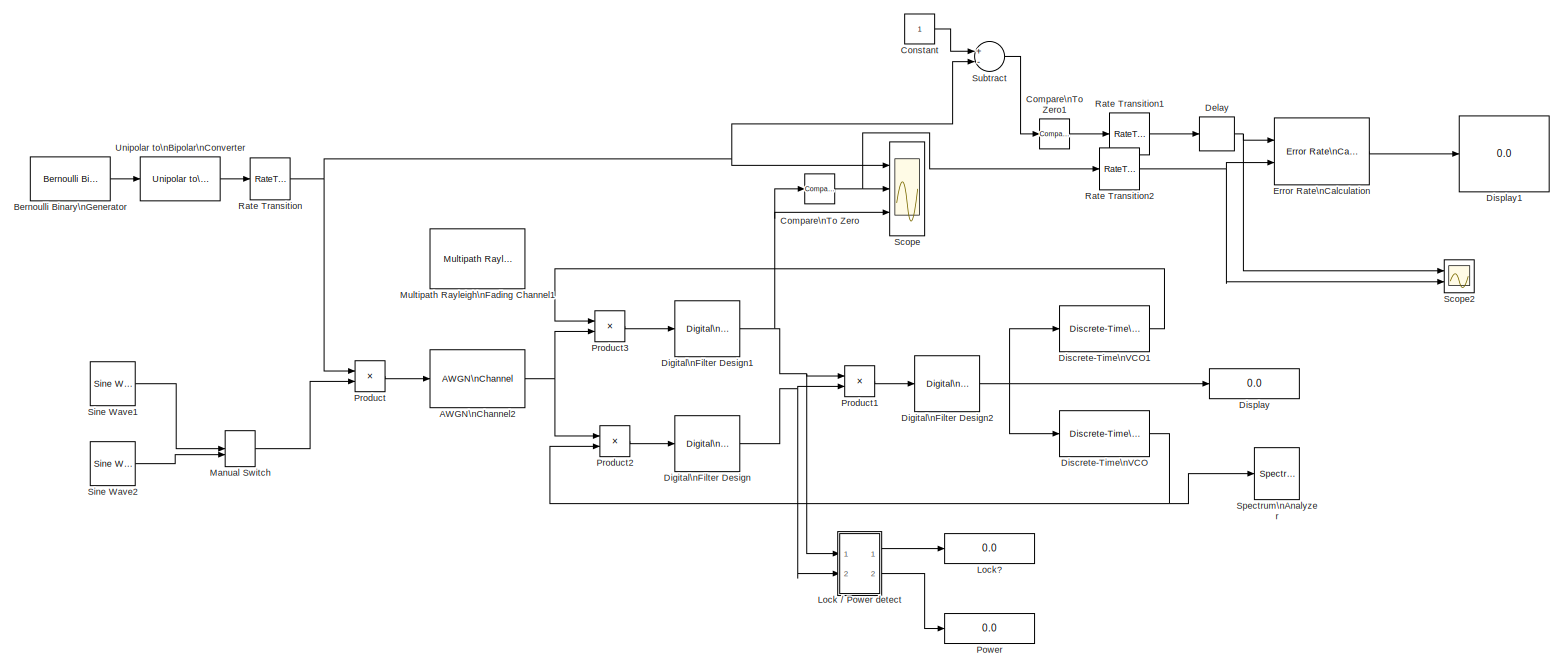
[diagram: root canvas - part 1/1, most of the canvas]
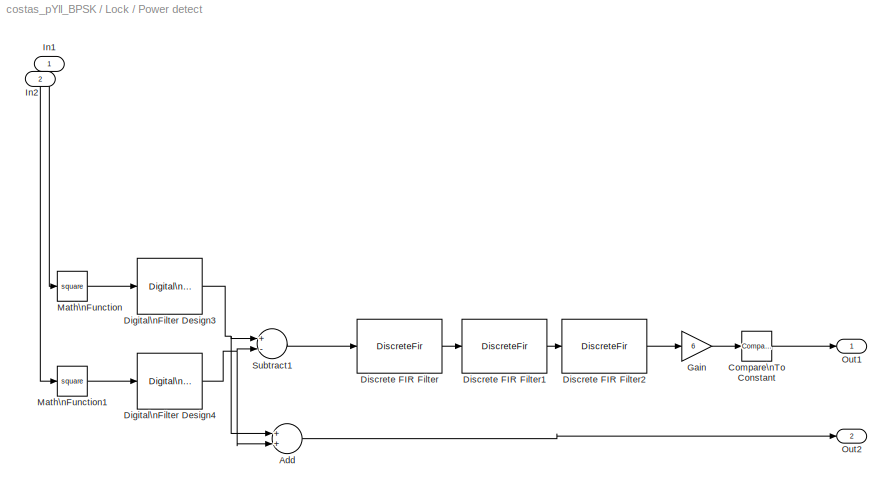
MODEL costas_pYll_BPSK
KIND model
BLOCK [Reference] AWGN\nChannel2  REF=commchan3/AWGN\nChannel
  EbNodB = 10
  EsNodB = 10
  InputProcessing = Inherited (this choice will be removed - see release notes)
  Ports = [1, 1]
  Ps = 1
  SID = 30
  SNRdB = 10
  SourceBlock = commchan3/AWGN\nChannel
  SourceType = AWGN Channel
  Tsym = 1
  UserData = DataTag0
  UserDataPersistent = on
  bitsPerSym = 1
  noiseMode = Signal to noise ratio  (SNR)
  seed = 67
  variance = 1
BLOCK [Reference] Bernoulli Binary\nGenerator  REF=commrandsrc2/Bernoulli Binary\nGenerator
  P = 0.5
  Ports = [0, 1]
  SID = 2
  SourceBlock = commrandsrc2/Bernoulli Binary\nGenerator
  SourceType = Bernoulli Binary Generator
  Ts = 1/200
  frameBased = off
  orient = off
  outDataType = double
  sampPerFrame = 1
  seed = 61
BLOCK [Reference] Compare\nTo Zero  REF=simulink/Logic and Bit\nOperations/Compare\nTo Zero
  OutDataTypeStr = uint8
  Ports = [1, 1]
  SID = 3
  SourceBlock = simulink/Logic and Bit\nOperations/Compare\nTo Zero
  SourceType = Compare To Zero
  ZeroCross = off
  relop = >
BLOCK [Reference] Compare\nTo Zero1  REF=simulink/Logic and Bit\nOperations/Compare\nTo Zero
  OutDataTypeStr = uint8
  Ports = [1, 1]
  SID = 25
  SourceBlock = simulink/Logic and Bit\nOperations/Compare\nTo Zero
  SourceType = Compare To Zero
  ZeroCross = off
  relop = >
BLOCK [Constant] Constant
  SID = 24
BLOCK [Delay] Delay
  DelayLength = 1
  InitialCondition = 0
  InputPortMap = u0
  Ports = [1, 1]
  SID = 36
BLOCK [Reference] Digital\nFilter Design  REF=dsparch4/Digital\nFilter Design
  Ports = [1, 1]
  SID = 4
  SourceBlock = dsparch4/Digital\nFilter Design
  SourceType = Digital Filter Design
  UserData = DataTag1
  UserDataPersistent = on
  mwdsp_browser_bugfix_var = off
BLOCK [Reference] Digital\nFilter Design1  REF=dsparch4/Digital\nFilter Design
  Ports = [1, 1]
  SID = 5
  SourceBlock = dsparch4/Digital\nFilter Design
  SourceType = Digital Filter Design
  UserData = DataTag2
  UserDataPersistent = on
  mwdsp_browser_bugfix_var = off
BLOCK [Reference] Digital\nFilter Design2  REF=dsparch4/Digital\nFilter Design
  Ports = [1, 1]
  SID = 6
  SourceBlock = dsparch4/Digital\nFilter Design
  SourceType = Digital Filter Design
  UserData = DataTag3
  UserDataPersistent = on
  mwdsp_browser_bugfix_var = off
BLOCK [Reference] Discrete-Time\nVCO  REF=commsynccomp2/Discrete-Time\nVCO
  Ac = 1
  Fc = 1e3
  Kc = 1e2
  Ph = pi/2
  Ports = [1, 1]
  SID = 7
  SourceBlock = commsynccomp2/Discrete-Time\nVCO
  SourceType = Discrete-Time VCO
  ts = 1/16e3
BLOCK [Reference] Discrete-Time\nVCO1  REF=commsynccomp2/Discrete-Time\nVCO
  Ac = 1
  Fc = 1e3
  Kc = 1e2
  Ph = 0
  Ports = [1, 1]
  SID = 8
  SourceBlock = commsynccomp2/Discrete-Time\nVCO
  SourceType = Discrete-Time VCO
  ts = 1/16e3
BLOCK [Display] Display
  Decimation = 1
  Ports = [1]
  SID = 17
BLOCK [Display] Display1
  Decimation = 1
  Ports = [1]
  SID = 22
BLOCK [Reference] Error Rate\nCalculation  REF=commsink2/Error Rate\nCalculation
  N = 0
  PMode = Port
  Ports = [2, 1]
  RsMode2 = off
  SID = 21
  SourceBlock = commsink2/Error Rate\nCalculation
  SourceType = Error Rate Calculation
  WsName = QAM_BER
  cp_mode = Entire frame
  maxBits = maxbits
  numErr = maxerr
  st_delay = 1
  stop = off
  subframe = []
BLOCK [SubSystem] Lock // Power detect
  Ports = [2, 2]
  RequestExecContextInheritance = off
  SID = 56
BLOCK [Sum] Lock // Power detect/Add
  InputSameDT = off
  OutDataTypeStr = Inherit: Inherit via internal rule
  Ports = [2, 1]
  SID = 45
  SaturateOnIntegerOverflow = off
BLOCK [Reference] Lock // Power detect/Compare\nTo Constant  REF=simulink/Logic and Bit\nOperations/Compare\nTo Constant
  OutDataTypeStr = boolean
  Ports = [1, 1]
  SID = 53
  SourceBlock = simulink/Logic and Bit\nOperations/Compare\nTo Constant
  SourceType = Compare To Constant
  ZeroCross = on
  const = 1
  relop = >=
BLOCK [Reference] Lock // Power detect/Digital\nFilter Design3  REF=dsparch4/Digital\nFilter Design
  Ports = [1, 1]
  SID = 40
  SourceBlock = dsparch4/Digital\nFilter Design
  SourceType = Digital Filter Design
  UserData = DataTag4
  UserDataPersistent = on
  mwdsp_browser_bugfix_var = off
BLOCK [Reference] Lock // Power detect/Digital\nFilter Design4  REF=dsparch4/Digital\nFilter Design
  Ports = [1, 1]
  SID = 41
  SourceBlock = dsparch4/Digital\nFilter Design
  SourceType = Digital Filter Design
  UserData = DataTag5
  UserDataPersistent = on
  mwdsp_browser_bugfix_var = off
BLOCK [DiscreteFir] Lock // Power detect/Discrete FIR Filter
  Coefficients = [0.01 0.01 0.01 0.01 0.01 0.01 0.01 0.01 0.01 0.01 0.01 0.01 0.01 0.01 0.01 0.01 0.01 0.01 0.01 0.01 0.01 0.01 0.01 0.01 0.01 0.01 0.01 0.01 0.01 0.01 0.01 0.01 0.01 0.01 0.01 0.01 0.01 0.01 0.01 0.01 0.01 0.01 0.01 0.01 0.01 0.01 0.01 0.01 0.01 0.01 0.01 0.01 0.01 0.01 0.01 0.01 0.01 0.01 0.01 0.01 0.01 0.01 0.01 0.01 0.01 0.01 0.01 0.01 0.01 0.01 0.01 0.01 0.01 0.01 0.01 0.01 0.01 0.01 0.01 0.01...<+101ch>  <repeated x3 — deduplicated; at blocks: Discrete FIR Filter, Discrete FIR Filter1, Discrete FIR Filter2>
  InputProcessing = Columns as channels (frame based)
  Ports = [1, 1]
  SID = 48
BLOCK [DiscreteFir] Lock // Power detect/Discrete FIR Filter1
  InputProcessing = Columns as channels (frame based)
  Ports = [1, 1]
  SID = 50
BLOCK [DiscreteFir] Lock // Power detect/Discrete FIR Filter2
  InputProcessing = Columns as channels (frame based)
  Ports = [1, 1]
  SID = 51
BLOCK [Gain] Lock // Power detect/Gain
  Gain = 6
  OutDataTypeStr = Inherit: Inherit via internal rule
  ParamDataTypeStr = Inherit: Inherit via internal rule
  SID = 49
  SaturateOnIntegerOverflow = off
BLOCK [Inport] Lock // Power detect/In1
  IconDisplay = Port number
  SID = 57
BLOCK [Inport] Lock // Power detect/In2
  IconDisplay = Port number
  Port = 2
  SID = 58
BLOCK [Math] Lock // Power detect/Math\nFunction
  Operator = square
  Ports = [1, 1]
  SID = 37
BLOCK [Math] Lock // Power detect/Math\nFunction1
  Operator = square
  Ports = [1, 1]
  SID = 38
BLOCK [Outport] Lock // Power detect/Out1
  IconDisplay = Port number
  SID = 59
BLOCK [Outport] Lock // Power detect/Out2
  IconDisplay = Port number
  Port = 2
  SID = 60
BLOCK [Sum] Lock // Power detect/Subtract1
  InputSameDT = off
  Inputs = +-
  OutDataTypeStr = Inherit: Inherit via internal rule
  Ports = [2, 1]
  SID = 42
  SaturateOnIntegerOverflow = off
BLOCK [Display] Lock?
  Decimation = 1
  Ports = [1]
  SID = 54
BLOCK [ManualSwitch] Manual Switch
  SID = 20
BLOCK [Reference] Multipath Rayleigh\nFading Channel1  REF=commchan3/Multipath Rayleigh\nFading Channel
  Ports = [1, 1]
  SID = 29
  SourceBlock = commchan3/Multipath Rayleigh\nFading Channel
  SourceType = Multipath Rayleigh Fading Channel
  avgPathGaindB = [0 -3]
  centerFreqGaussian1 = 0.0
  centerFreqGaussian2 = 0.0
  coeffBell = 9
  coeffRounded = [1 -1.72 0.785]
  dopplerSpectrum = doppler.jakes
  enableProbe = 0
  freqMinMaxAJakes = [0 1]
  freqMinMaxRJakes = [0 1]
  gainGaussian1 = 0.5
  gainGaussian2 = 0.5
  maxDopplerShift = 40
  normalizePathGains = on
  openVisAtStart = off
  outDelay = off
  outPathGains = off
  pathDelays = [0 2e-6]
  seed = 73
  sigmaGaussian = 1/sqrt(2)
  sigmaGaussian1 = 1/sqrt(2)
  sigmaGaussian2 = 1/sqrt(2)
  spectrumType = Jakes
BLOCK [Display] Power
  Decimation = 1
  Ports = [1]
  SID = 55
BLOCK [Product] Product
  InputSameDT = off
  OutDataTypeStr = Inherit: Inherit via internal rule
  Ports = [2, 1]
  SID = 9
  SaturateOnIntegerOverflow = off
BLOCK [Product] Product1
  InputSameDT = off
  OutDataTypeStr = Inherit: Inherit via internal rule
  Ports = [2, 1]
  SID = 10
  SaturateOnIntegerOverflow = off
BLOCK [Product] Product2
  InputSameDT = off
  OutDataTypeStr = Inherit: Inherit via internal rule
  Ports = [2, 1]
  SID = 11
  SaturateOnIntegerOverflow = off
BLOCK [Product] Product3
  InputSameDT = off
  OutDataTypeStr = Inherit: Inherit via internal rule
  Ports = [2, 1]
  SID = 12
  SaturateOnIntegerOverflow = off
BLOCK [RateTransition] Rate Transition
  SID = 13
BLOCK [RateTransition] Rate Transition1
  OutPortSampleTime = 1/200
  SID = 32
BLOCK [RateTransition] Rate Transition2
  OutPortSampleTime = 1/200
  SID = 33
BLOCK [Scope] Scope
  Commented = on
  DataFormat = StructureWithTime
  Floating = off
  NumInputPorts = 3
  Ports = [3]
  SID = 14
  SampleTime = 0
  ShowLegends = off
  TimeRange = 0.5
  YMax = 1~1~1
  YMin = -1~0~-1
  ZoomMode = xonly
BLOCK [Scope] Scope2
  Floating = off
  NumInputPorts = 2
  Ports = [2]
  SID = 44
  SaveName = ScopeData2
  ShowLegends = off
  TimeRange = 0.5
  YMax = 1~1
  YMin = 0~0
BLOCK [Reference] Sine Wave1  REF=dspsrcs4/Sine Wave
  Amplitude = 1
  CompMethod = Trigonometric fcn
  Frequency = 2e3
  LastOutDataTypeStr = double
  OutComplex = Real
  OutDataTypeStr = double
  Phase = 0
  Ports = [0, 1]
  ResetState = Restart at time zero
  SID = 15
  SampleMode = Discrete
  SampleTime = 1/(16*2e3)
  SamplesPerFrame = 1
  SourceBlock = dspsrcs4/Sine Wave
  SourceType = Sine Wave
  TableSize = Speed
  additionalParams = off
  allowOverrides = on
  dataType = double
  fracBitsMode = Best precision
  numFracBits = 15
  udDataType = sfix(16)
  wordLen = 16
BLOCK [Reference] Sine Wave2  REF=dspsrcs4/Sine Wave
  Amplitude = 1
  CompMethod = Trigonometric fcn
  Frequency = 2.1002e3
  LastOutDataTypeStr = double
  OutComplex = Real
  OutDataTypeStr = double
  Phase = 0
  Ports = [0, 1]
  ResetState = Restart at time zero
  SID = 19
  SampleMode = Discrete
  SampleTime = 1/(16*2e3)
  SamplesPerFrame = 1
  SourceBlock = dspsrcs4/Sine Wave
  SourceType = Sine Wave
  TableSize = Speed
  additionalParams = off
  allowOverrides = on
  dataType = double
  fracBitsMode = Best precision
  numFracBits = 15
  udDataType = sfix(16)
  wordLen = 16
BLOCK [SpectrumAnalyzer] Spectrum\nAnalyzer
  Commented = on
  Ports = [1]
  SID = 18
  ScopeSpecificationString = spbscopes.SpectrumAnalyzerBlockCfg('CurrentConfiguration', extmgr.ConfigurationSet(extmgr.Configuration('Core','General UI',true),extmgr.Configuration('Core','Source UI',true),extmgr.Configuration('Sources','WiredSimulink',true),extmgr.Configuration('Visuals','Spectrum',true,'AxesProperties',struct('Color',[0 0 0],'XColor',[0.686274509803922 0.686274509803922 0.686274509803922],'YColor',[0.6862745...<+6422ch>
BLOCK [Sum] Subtract
  InputSameDT = off
  Inputs = +-
  OutDataTypeStr = Inherit: Inherit via internal rule
  Ports = [2, 1]
  SID = 23
  SaturateOnIntegerOverflow = off
BLOCK [Reference] Unipolar to\nBipolar\nConverter  REF=commutil2/Unipolar to\nBipolar\nConverter
  M = 2
  Ports = [1, 1]
  SID = 16
  SourceBlock = commutil2/Unipolar to\nBipolar\nConverter
  SourceType = Unipolar to Bipolar Converter
  dataType = Same as input
  polarity = Positive
NET AWGN\nChannel2:1 -> Product2:1, Product3:2
LINE Bernoulli Binary\nGenerator:1 -> Unipolar to\nBipolar\nConverter:1
LINE Compare\nTo Zero1:1 -> Rate Transition1:1
NET Compare\nTo Zero:1 -> Rate Transition2:1, Scope:2
LINE Constant:1 -> Subtract:1
NET Delay:1 -> Error Rate\nCalculation:1, Scope2:1
NET Digital\nFilter Design1:1 -> Compare\nTo Zero:1, Lock // Power detect:1, Product1:1, Scope:3
NET Digital\nFilter Design2:1 -> Discrete-Time\nVCO1:1, Discrete-Time\nVCO:1, Display:1
NET Digital\nFilter Design:1 -> Lock // Power detect:2, Product1:2
LINE Discrete-Time\nVCO1:1 -> Product3:1
NET Discrete-Time\nVCO:1 -> Product2:2, Spectrum\nAnalyzer:1
LINE Error Rate\nCalculation:1 -> Display1:1
LINE Lock // Power detect/Add:1 -> Lock // Power detect/Out2:1
LINE Lock // Power detect/Compare\nTo Constant:1 -> Lock // Power detect/Out1:1
NET Lock // Power detect/Digital\nFilter Design3:1 -> Lock // Power detect/Add:1, Lock // Power detect/Subtract1:1
NET Lock // Power detect/Digital\nFilter Design4:1 -> Lock // Power detect/Add:2, Lock // Power detect/Subtract1:2
LINE Lock // Power detect/Discrete FIR Filter1:1 -> Lock // Power detect/Discrete FIR Filter2:1
LINE Lock // Power detect/Discrete FIR Filter2:1 -> Lock // Power detect/Gain:1
LINE Lock // Power detect/Discrete FIR Filter:1 -> Lock // Power detect/Discrete FIR Filter1:1
LINE Lock // Power detect/Gain:1 -> Lock // Power detect/Compare\nTo Constant:1
LINE Lock // Power detect/In1:1 -> Lock // Power detect/Math\nFunction:1
LINE Lock // Power detect/In2:1 -> Lock // Power detect/Math\nFunction1:1
LINE Lock // Power detect/Math\nFunction1:1 -> Lock // Power detect/Digital\nFilter Design4:1
LINE Lock // Power detect/Math\nFunction:1 -> Lock // Power detect/Digital\nFilter Design3:1
LINE Lock // Power detect/Subtract1:1 -> Lock // Power detect/Discrete FIR Filter:1
LINE Lock // Power detect:1 -> Lock?:1
LINE Lock // Power detect:2 -> Power:1
LINE Manual Switch:1 -> Product:2
LINE Product1:1 -> Digital\nFilter Design2:1
LINE Product2:1 -> Digital\nFilter Design:1
LINE Product3:1 -> Digital\nFilter Design1:1
LINE Product:1 -> AWGN\nChannel2:1
LINE Rate Transition1:1 -> Delay:1
NET Rate Transition2:1 -> Error Rate\nCalculation:2, Scope2:2
NET Rate Transition:1 -> Product:1, Scope:1, Subtract:2
LINE Sine Wave1:1 -> Manual Switch:1
LINE Sine Wave2:1 -> Manual Switch:2
LINE Subtract:1 -> Compare\nTo Zero1:1
LINE Unipolar to\nBipolar\nConverter:1 -> Rate Transition:1
note: NET lines group one-source signal fan-out (src -> all destinations, sorted); 1:1 wires keep LINE
